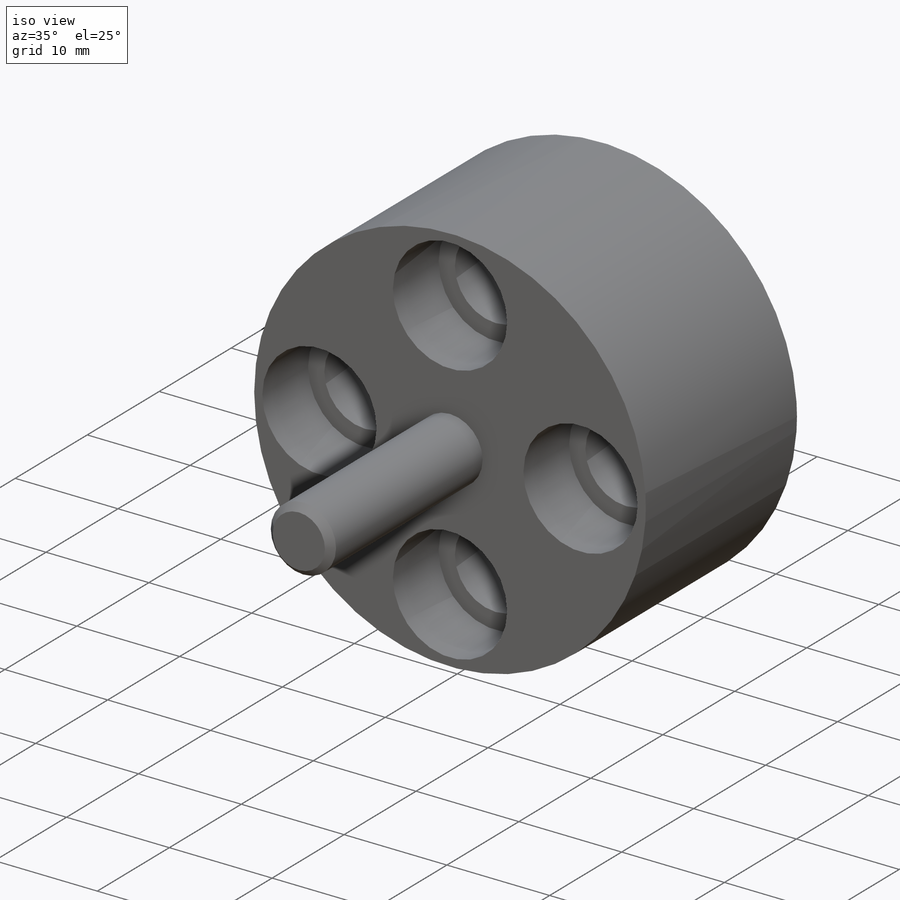
[diagram: iso view]
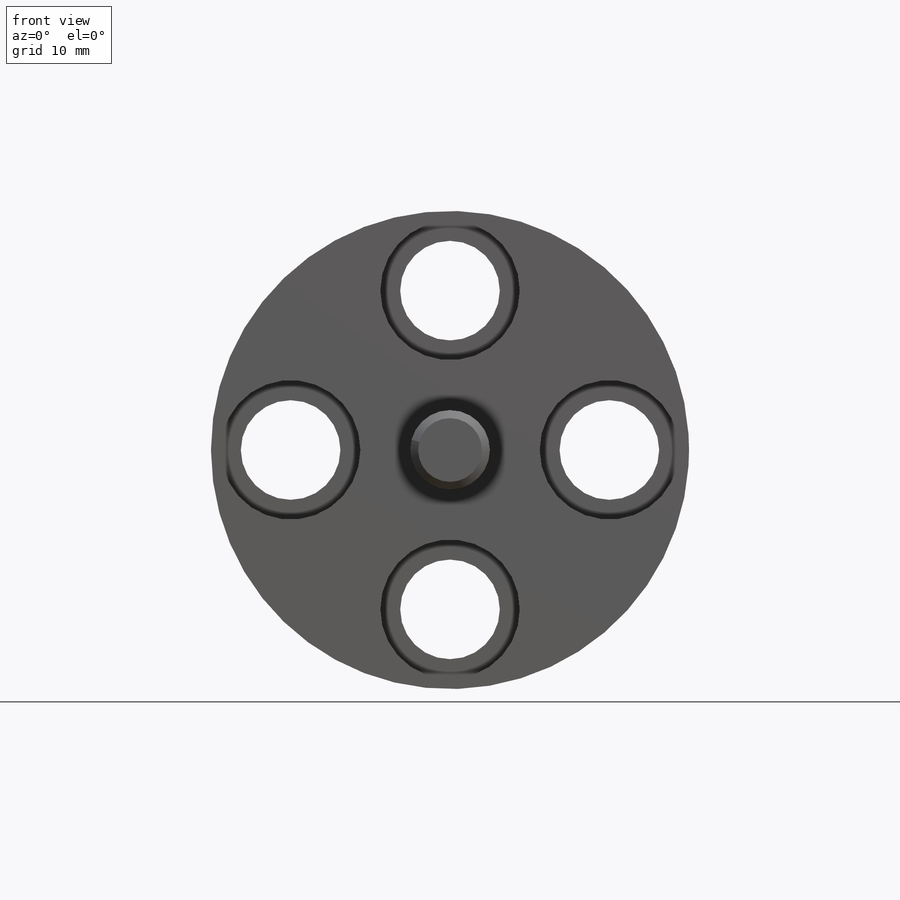
[diagram: front view]
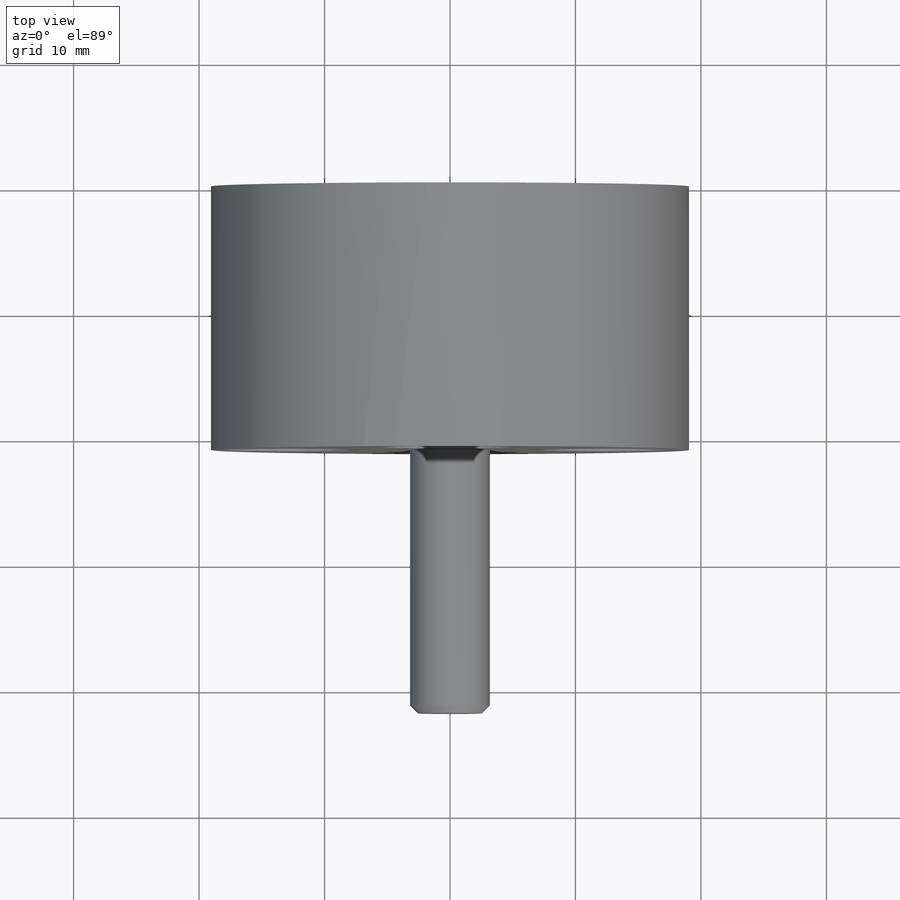
[diagram: top view]
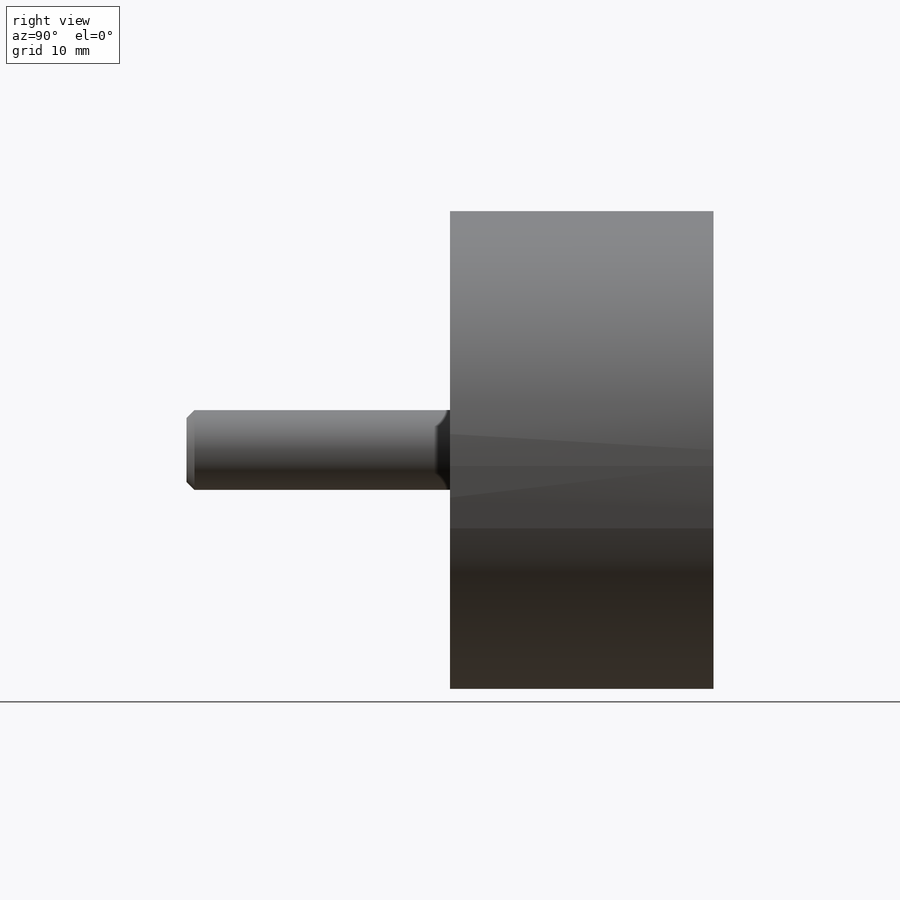
[diagram: right view]
SOLIDWORKS PART (.sldprt)
format: sldprt  version: not decoded by parser v0  size: 261,632 bytes
history: native  units: mm
features: sketch x7, extrude x3, hole x2, material x1, plane x1, chamfer x1 (+13 scaffold rows collapsed)
feature tree (28):
  scaffold x13  (default folders/planes/origin — collapsed)
  material  "Material <not specified>"
  sketch  "Sketch1"  dims[D1=10.0mm D2=7.9375mm D4=38.1mm D3=12.7mm]
  extrude  "Boss-Extrude1"  Depth=21mm
  plane  "Plane1"  Offset=6.858mm
  sketch  "Sketch3"
  extrude  "Boss-Extrude2"  [1 undecoded]
  sketch  "Sketch4"  dims[D1=6.35mm]
  extrude  "Boss-Extrude3"  Depth=21mm
  chamfer  "Chamfer1"  Distance=0.635mm Angle=45deg
  hole  "CBORE for 1/4 Socket Head Cap Screw1"  Diameter=6.7564mm Depth=21mm
  sketch  "Sketch6"
  sketch  "Sketch5"  dims[hole-wizard template sketch: 42 standard entries collapsed; hole parameters kept: c12.Thru Hole Depth=21.0mm c12.C'Bore Dia.=11.1125mm c12.C'Bore Depth=6.35mm]
  hole  "CBORE for 1/4 Socket Head Cap Screw2"  Diameter=6.7564mm Depth=0.0254mm
  sketch  "Sketch8"
  sketch  "Sketch7"  dims[hole-wizard template sketch: 28 standard entries collapsed; hole parameters kept: c8.Hole Dia.=6.7564mm c8.Hole Depth=0.0254mm c8.C'Bore Dia.=11.1125mm c8.C'Bore Depth=6.858mm c8.D5=~14.816244mm c8.Drill Angle=118.0deg]
decode coverage: 9 of 13 modeling features carry decoded parameters
note: ~ marks probable driven/reference dimensions
note: 1 parameter value undecoded
note: suppression state not decoded; provenance and decode notes live in map.json
